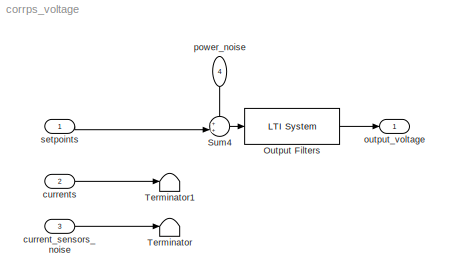
MODEL corrps_voltage
KIND model
BLOCK [Reference] Output Filters  REF=cstblocks/LTI System
  IC = []
  Ports = [1, 1]
  SID = 22
  SourceBlock = cstblocks/LTI System
  SourceType = LTI Block
  sys = corrpsfilter
BLOCK [Sum] Sum4
  IconShape = round
  InputSameDT = off
  Inputs = ++|
  OutDataTypeStr = Inherit: Inherit via internal rule
  Ports = [2, 1]
  SID = 15
  SampleTime = sofbctrl.Ts
  SaturateOnIntegerOverflow = off
BLOCK [Terminator] Terminator
  SID = 20
BLOCK [Terminator] Terminator1
  SID = 21
BLOCK [Inport] current_sensors_noise
  IconDisplay = Port number
  Port = 3
  PortDimensions = ncorrsofb
  SID = 4
BLOCK [Inport] currents
  IconDisplay = Port number
  Port = 2
  PortDimensions = ncorrsofb
  SID = 2
BLOCK [Outport] output_voltage
  IconDisplay = Port number
  SID = 19
BLOCK [Inport] power_noise
  IconDisplay = Port number
  Port = 4
  PortDimensions = ncorrsofb
  SID = 5
BLOCK [Inport] setpoints
  IconDisplay = Port number
  PortDimensions = ncorrsofb
  SID = 3
  SampleTime = sofbctrl.Ts
LINE Output Filters:1 -> output_voltage:1
LINE Sum4:1 -> Output Filters:1
LINE current_sensors_noise:1 -> Terminator:1
LINE currents:1 -> Terminator1:1
LINE power_noise:1 -> Sum4:1
LINE setpoints:1 -> Sum4:2
